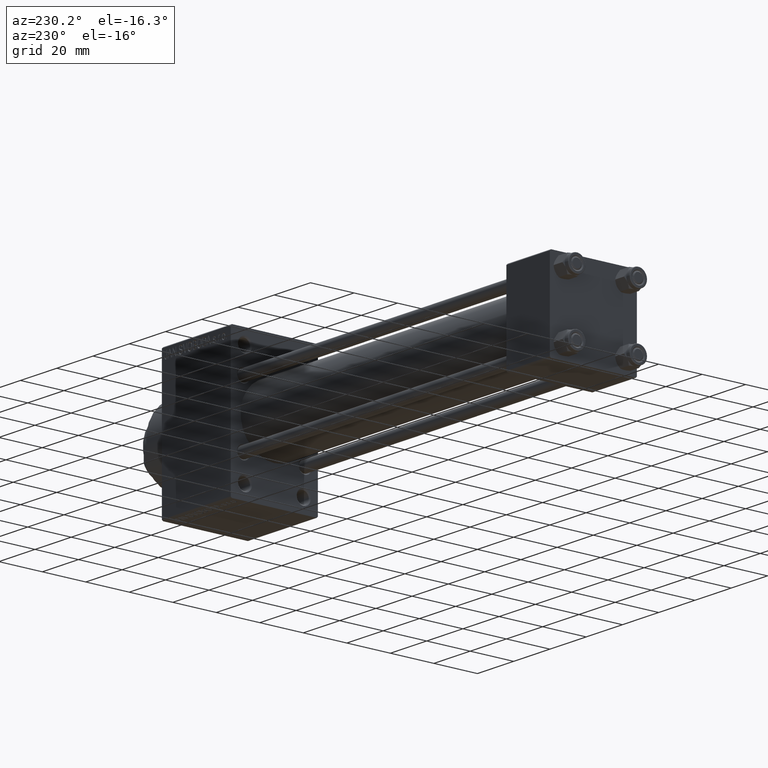
[diagram: clean part render]
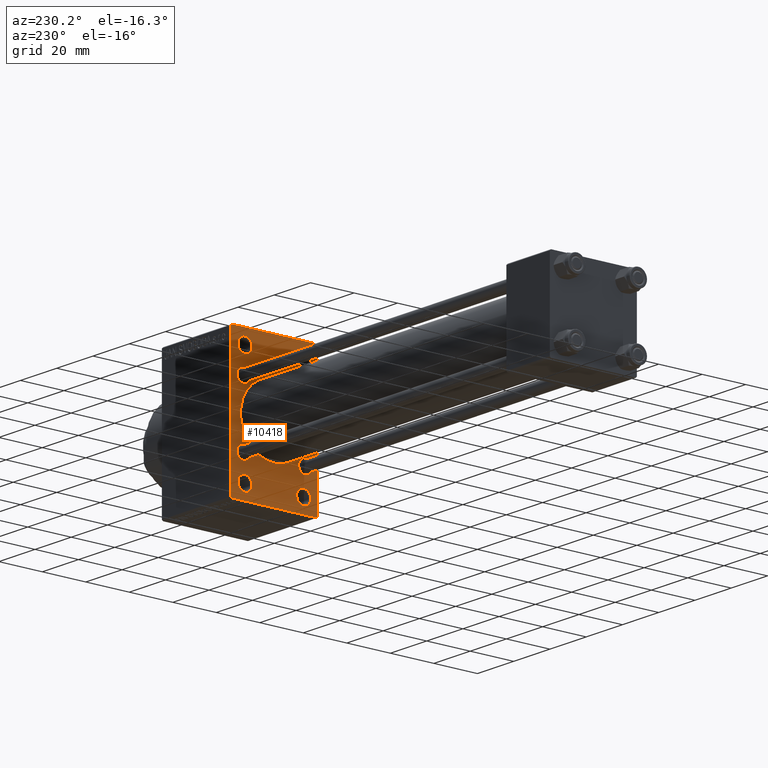
[diagram: same view with one face highlighted and labeled with its STEP entity id]
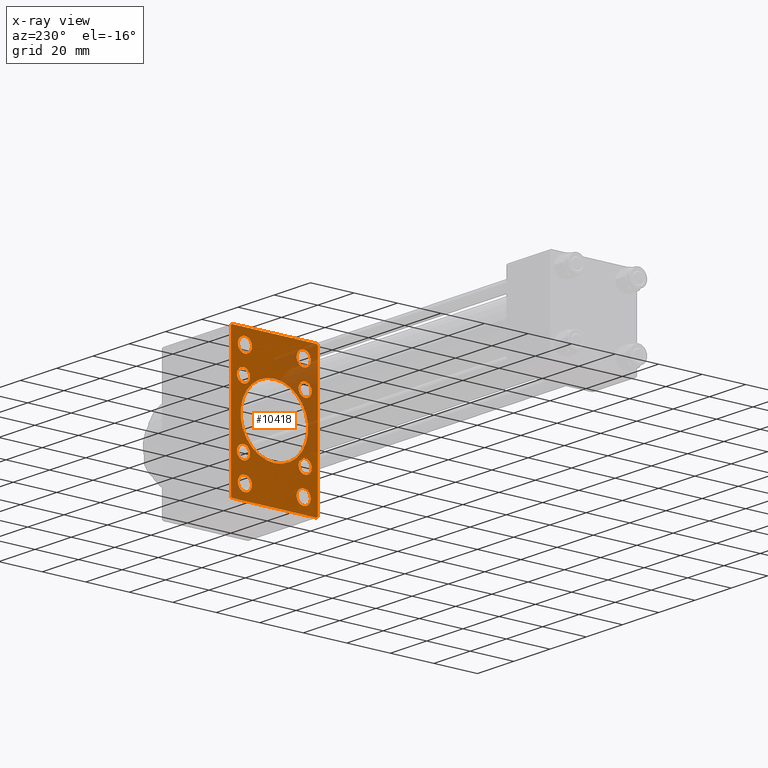
[diagram: x-ray of the same camera — body ghosted, the highlighted face saturated]
A machine part, auxiliary view. The second image highlights one B-rep face of the part: STEP entity #10418.
The next image is the same camera in x-ray: the body ghosted, the highlighted face saturated — about 21% of this face is hidden behind the body in this view.
In plain terms, the highlighted planar face has unit normal (-1, 0, 0).
Its self-contained STEP definition (entity closure, byte-faithful):
#26 = LINE ( 'NONE', #36191, #19155 ) ;
#763 = CIRCLE ( 'NONE', #34964, 3.000000000000004441 ) ;
#901 = DIRECTION ( 'NONE',  ( 1.000000000000000000, 0.000000000000000000, 0.000000000000000000 ) ) ;
#940 = ORIENTED_EDGE ( 'NONE', *, *, #29531, .T. ) ;
#1084 = CARTESIAN_POINT ( 'NONE',  ( 176.0000000000000000, 13.49999999999999822, 22.25000000000000355 ) ) ;
#1303 = VERTEX_POINT ( 'NONE', #4501 ) ;
#1853 = DIRECTION ( 'NONE',  ( 0.000000000000000000, 0.000000000000000000, 1.000000000000000000 ) ) ;
#2238 = CARTESIAN_POINT ( 'NONE',  ( 176.0000000000000000, -25.75000000000000000, 25.75000000000000000 ) ) ;
#2436 = DIRECTION ( 'NONE',  ( 1.000000000000000000, 0.000000000000000000, 0.000000000000000000 ) ) ;
#2564 = AXIS2_PLACEMENT_3D ( 'NONE', #13270, #19927, #1853 ) ;
#2987 = AXIS2_PLACEMENT_3D ( 'NONE', #42144, #5728, #45725 ) ;
#3020 = DIRECTION ( 'NONE',  ( -1.000000000000000000, 0.000000000000000000, -0.000000000000000000 ) ) ;
#3025 = CARTESIAN_POINT ( 'NONE',  ( 176.0000000000000000, -14.15000000000000036, -11.14999999999999680 ) ) ;
#3747 = DIRECTION ( 'NONE',  ( 0.000000000000000000, 0.000000000000000000, 1.000000000000000000 ) ) ;
#3805 = CARTESIAN_POINT ( 'NONE',  ( 176.0000000000000000, -19.49999999999997158, -32.00000000000000000 ) ) ;
#3872 = VERTEX_POINT ( 'NONE', #43807 ) ;
#4090 = ORIENTED_EDGE ( 'NONE', *, *, #29637, .T. ) ;
#4441 = CARTESIAN_POINT ( 'NONE',  ( 176.0000000000000000, 20.00000000000000000, -31.50000000000000000 ) ) ;
#4501 = CARTESIAN_POINT ( 'NONE',  ( 176.0000000000000000, -14.15000000000000036, -17.15000000000000568 ) ) ;
#4521 = CIRCLE ( 'NONE', #28823, 3.250000000000002665 ) ;
#5034 = CARTESIAN_POINT ( 'NONE',  ( 176.0000000000000000, 14.15000000000000036, -11.14999999999999680 ) ) ;
#5160 = DIRECTION ( 'NONE',  ( 0.000000000000000000, 0.000000000000000000, -1.000000000000000000 ) ) ;
#5552 = EDGE_CURVE ( 'NONE', #22484, #14336, #27238, .T. ) ;
#5576 = DIRECTION ( 'NONE',  ( 0.000000000000000000, 0.000000000000000000, -1.000000000000000000 ) ) ;
#5677 = FACE_BOUND ( 'NONE', #18451, .T. ) ;
#5728 = DIRECTION ( 'NONE',  ( 1.000000000000000000, 0.000000000000000000, 0.000000000000000000 ) ) ;
#5778 = AXIS2_PLACEMENT_3D ( 'NONE', #12160, #41201, #23556 ) ;
#5787 = CIRCLE ( 'NONE', #32372, 3.250000000000002665 ) ;
#5875 = VERTEX_POINT ( 'NONE', #45697 ) ;
#5909 = PLANE ( 'NONE',  #29433 ) ;
#6326 = CARTESIAN_POINT ( 'NONE',  ( 176.0000000000000000, 13.49999999999999822, 28.75000000000000711 ) ) ;
#6386 = ORIENTED_EDGE ( 'NONE', *, *, #36521, .T. ) ;
#6470 = CARTESIAN_POINT ( 'NONE',  ( 176.0000000000000000, 25.75000000000000000, -25.75000000000000000 ) ) ;
#6526 = AXIS2_PLACEMENT_3D ( 'NONE', #47090, #14699, #3747 ) ;
#6543 = DIRECTION ( 'NONE',  ( 1.000000000000000000, 0.000000000000000000, 0.000000000000000000 ) ) ;
#6623 = CIRCLE ( 'NONE', #35487, 3.250000000000002665 ) ;
#6944 = LINE ( 'NONE', #17877, #17546 ) ;
#7282 = EDGE_LOOP ( 'NONE', ( #940, #39433 ) ) ;
#7283 = EDGE_CURVE ( 'NONE', #3872, #14499, #25501, .T. ) ;
#7336 = EDGE_CURVE ( 'NONE', #28359, #10002, #11864, .T. ) ;
#7454 = VERTEX_POINT ( 'NONE', #8549 ) ;
#7523 = VERTEX_POINT ( 'NONE', #42325 ) ;
#7594 = CARTESIAN_POINT ( 'NONE',  ( 176.0000000000000000, -13.50000000000000533, -28.74999999999999645 ) ) ;
#7671 = EDGE_CURVE ( 'NONE', #44093, #46185, #43023, .T. ) ;
#7761 = EDGE_CURVE ( 'NONE', #7523, #14870, #5787, .T. ) ;
#8262 = CARTESIAN_POINT ( 'NONE',  ( 176.0000000000000000, -13.50000000000000178, 25.50000000000000355 ) ) ;
#8549 = CARTESIAN_POINT ( 'NONE',  ( 176.0000000000000000, 20.00000000000000000, 31.50000000000000000 ) ) ;
#8637 = EDGE_CURVE ( 'NONE', #22484, #29028, #23700, .T. ) ;
#8904 = EDGE_CURVE ( 'NONE', #5875, #25146, #19500, .T. ) ;
#8970 = CARTESIAN_POINT ( 'NONE',  ( 176.0000000000000000, 13.49999999999999822, -28.75000000000000000 ) ) ;
#9479 = CARTESIAN_POINT ( 'NONE',  ( 176.0000000000000000, 0.000000000000000000, 0.000000000000000000 ) ) ;
#9532 = ORIENTED_EDGE ( 'NONE', *, *, #7283, .T. ) ;
#9956 = EDGE_CURVE ( 'NONE', #15101, #14336, #22778, .T. ) ;
#10002 = VERTEX_POINT ( 'NONE', #8970 ) ;
#10168 = FACE_BOUND ( 'NONE', #7282, .T. ) ;
#10418 = ADVANCED_FACE ( 'NONE', ( #39201, #38509, #31829, #10168, #42096, #5677, #13287, #16850, #41863, #34934 ), #5909, .T. ) ;
#10728 = DIRECTION ( 'NONE',  ( 0.000000000000000000, 0.000000000000000000, -1.000000000000000000 ) ) ;
#10756 = EDGE_CURVE ( 'NONE', #30966, #28213, #25610, .T. ) ;
#11080 = AXIS2_PLACEMENT_3D ( 'NONE', #32837, #36151, #18073 ) ;
#11297 = DIRECTION ( 'NONE',  ( 0.000000000000000000, 0.000000000000000000, 1.000000000000000000 ) ) ;
#11367 = CARTESIAN_POINT ( 'NONE',  ( 176.0000000000000000, 20.00000000000000000, -32.00000000000000000 ) ) ;
#11375 = DIRECTION ( 'NONE',  ( 0.000000000000000000, -1.000000000000000000, -1.734723475976807094E-16 ) ) ;
#11417 = ORIENTED_EDGE ( 'NONE', *, *, #7336, .T. ) ;
#11428 = VERTEX_POINT ( 'NONE', #3025 ) ;
#11855 = CIRCLE ( 'NONE', #5778, 3.000000000000004441 ) ;
#11864 = CIRCLE ( 'NONE', #44521, 3.250000000000002665 ) ;
#12160 = CARTESIAN_POINT ( 'NONE',  ( 176.0000000000000000, 14.15000000000000036, 14.15000000000000036 ) ) ;
#12300 = DIRECTION ( 'NONE',  ( 1.000000000000000000, 0.000000000000000000, 0.000000000000000000 ) ) ;
#12688 = EDGE_CURVE ( 'NONE', #24943, #28308, #33030, .T. ) ;
#13270 = CARTESIAN_POINT ( 'NONE',  ( 176.0000000000000000, 13.49999999999999822, 25.50000000000000355 ) ) ;
#13287 = FACE_BOUND ( 'NONE', #27488, .T. ) ;
#13343 = CARTESIAN_POINT ( 'NONE',  ( 176.0000000000000000, 13.49999999999999822, -25.50000000000000000 ) ) ;
#14336 = VERTEX_POINT ( 'NONE', #44829 ) ;
#14442 = CARTESIAN_POINT ( 'NONE',  ( 176.0000000000000000, -13.50000000000000533, -25.49999999999999645 ) ) ;
#14499 = VERTEX_POINT ( 'NONE', #21921 ) ;
#14634 = CARTESIAN_POINT ( 'NONE',  ( 176.0000000000000000, 14.15000000000000036, -14.15000000000000036 ) ) ;
#14699 = DIRECTION ( 'NONE',  ( 1.000000000000000000, 0.000000000000000000, 0.000000000000000000 ) ) ;
#14870 = VERTEX_POINT ( 'NONE', #19236 ) ;
#14984 = DIRECTION ( 'NONE',  ( 1.000000000000000000, 0.000000000000000000, 0.000000000000000000 ) ) ;
#15101 = VERTEX_POINT ( 'NONE', #36332 ) ;
#15665 = VECTOR ( 'NONE', #34134, 1000.000000000000000 ) ;
#15767 = EDGE_CURVE ( 'NONE', #14499, #3872, #11855, .T. ) ;
#15846 = CARTESIAN_POINT ( 'NONE',  ( 176.0000000000000000, -13.50000000000000533, -22.24999999999999289 ) ) ;
#16413 = DIRECTION ( 'NONE',  ( 0.000000000000000000, 0.000000000000000000, 1.000000000000000000 ) ) ;
#16581 = CARTESIAN_POINT ( 'NONE',  ( 176.0000000000000000, 19.50000000000000000, -32.00000000000000000 ) ) ;
#16737 = AXIS2_PLACEMENT_3D ( 'NONE', #21715, #17905, #18621 ) ;
#16850 = FACE_BOUND ( 'NONE', #39389, .T. ) ;
#17048 = CARTESIAN_POINT ( 'NONE',  ( 176.0000000000000000, -14.15000000000000036, -14.15000000000000036 ) ) ;
#17546 = VECTOR ( 'NONE', #39787, 1000.000000000000000 ) ;
#17680 = AXIS2_PLACEMENT_3D ( 'NONE', #17048, #27536, #20381 ) ;
#17877 = CARTESIAN_POINT ( 'NONE',  ( 176.0000000000000000, -25.74999999999931077, -25.75000000000109779 ) ) ;
#17892 = VERTEX_POINT ( 'NONE', #7594 ) ;
#17905 = DIRECTION ( 'NONE',  ( 1.000000000000000000, 0.000000000000000000, 0.000000000000000000 ) ) ;
#18073 = DIRECTION ( 'NONE',  ( 0.000000000000000000, 0.000000000000000000, 1.000000000000000000 ) ) ;
#18267 = AXIS2_PLACEMENT_3D ( 'NONE', #36832, #901, #22546 ) ;
#18269 = VERTEX_POINT ( 'NONE', #15846 ) ;
#18451 = EDGE_LOOP ( 'NONE', ( #9532, #29707 ) ) ;
#18621 = DIRECTION ( 'NONE',  ( 0.000000000000000000, 0.000000000000000000, 1.000000000000000000 ) ) ;
#18631 = EDGE_CURVE ( 'NONE', #17892, #18269, #6623, .T. ) ;
#19155 = VECTOR ( 'NONE', #29529, 1000.000000000000000 ) ;
#19236 = CARTESIAN_POINT ( 'NONE',  ( 176.0000000000000000, -13.50000000000000178, 28.75000000000000355 ) ) ;
#19280 = DIRECTION ( 'NONE',  ( 1.000000000000000000, 0.000000000000000000, 0.000000000000000000 ) ) ;
#19500 = CIRCLE ( 'NONE', #24810, 15.50000000000000000 ) ;
#19865 = EDGE_LOOP ( 'NONE', ( #36417, #33818 ) ) ;
#19927 = DIRECTION ( 'NONE',  ( 1.000000000000000000, 0.000000000000000000, 0.000000000000000000 ) ) ;
#20328 = VERTEX_POINT ( 'NONE', #1084 ) ;
#20381 = DIRECTION ( 'NONE',  ( 0.000000000000000000, 0.000000000000000000, 1.000000000000000000 ) ) ;
#20384 = ORIENTED_EDGE ( 'NONE', *, *, #23537, .T. ) ;
#20453 = CIRCLE ( 'NONE', #2987, 3.000000000000004441 ) ;
#20704 = DIRECTION ( 'NONE',  ( 0.000000000000000000, 0.000000000000000000, 1.000000000000000000 ) ) ;
#20969 = DIRECTION ( 'NONE',  ( -0.000000000000000000, -0.7071067811865474617, -0.7071067811865474617 ) ) ;
#21715 = CARTESIAN_POINT ( 'NONE',  ( 176.0000000000000000, -13.50000000000000178, 25.50000000000000355 ) ) ;
#21921 = CARTESIAN_POINT ( 'NONE',  ( 176.0000000000000000, 14.15000000000000036, 11.14999999999999680 ) ) ;
#22082 = AXIS2_PLACEMENT_3D ( 'NONE', #31917, #43348, #10728 ) ;
#22132 = ORIENTED_EDGE ( 'NONE', *, *, #10756, .T. ) ;
#22484 = VERTEX_POINT ( 'NONE', #42200 ) ;
#22546 = DIRECTION ( 'NONE',  ( 0.000000000000000000, 0.000000000000000000, 1.000000000000000000 ) ) ;
#22764 = DIRECTION ( 'NONE',  ( 0.000000000000000000, 0.000000000000000000, 1.000000000000000000 ) ) ;
#22778 = LINE ( 'NONE', #26350, #44673 ) ;
#23079 = ORIENTED_EDGE ( 'NONE', *, *, #9956, .F. ) ;
#23236 = CARTESIAN_POINT ( 'NONE',  ( 176.0000000000000000, 20.00000000000000000, 32.00000000000000000 ) ) ;
#23458 = EDGE_LOOP ( 'NONE', ( #11417, #20384 ) ) ;
#23537 = EDGE_CURVE ( 'NONE', #10002, #28359, #4521, .T. ) ;
#23556 = DIRECTION ( 'NONE',  ( 0.000000000000000000, 0.000000000000000000, 1.000000000000000000 ) ) ;
#23562 = ORIENTED_EDGE ( 'NONE', *, *, #38080, .T. ) ;
#23643 = CARTESIAN_POINT ( 'NONE',  ( 176.0000000000000000, -2.602085213965210642E-15, 0.000000000000000000 ) ) ;
#23700 = LINE ( 'NONE', #37757, #41527 ) ;
#23854 = CIRCLE ( 'NONE', #2564, 3.250000000000002665 ) ;
#24266 = CARTESIAN_POINT ( 'NONE',  ( 176.0000000000000000, 14.15000000000000036, -14.15000000000000036 ) ) ;
#24294 = VERTEX_POINT ( 'NONE', #6326 ) ;
#24337 = CIRCLE ( 'NONE', #16737, 3.250000000000002665 ) ;
#24448 = DIRECTION ( 'NONE',  ( -0.000000000000000000, 0.000000000000000000, 1.000000000000000000 ) ) ;
#24810 = AXIS2_PLACEMENT_3D ( 'NONE', #23643, #26526, #5576 ) ;
#24943 = VERTEX_POINT ( 'NONE', #16581 ) ;
#25146 = VERTEX_POINT ( 'NONE', #26065 ) ;
#25501 = CIRCLE ( 'NONE', #11080, 3.000000000000004441 ) ;
#25566 = EDGE_LOOP ( 'NONE', ( #39034, #38115 ) ) ;
#25610 = CIRCLE ( 'NONE', #31695, 3.000000000000004441 ) ;
#25678 = ORIENTED_EDGE ( 'NONE', *, *, #34178, .T. ) ;
#25758 = EDGE_CURVE ( 'NONE', #25146, #5875, #46422, .T. ) ;
#26065 = CARTESIAN_POINT ( 'NONE',  ( 176.0000000000000000, -7.038826752868131828E-16, -15.50000000000000000 ) ) ;
#26350 = CARTESIAN_POINT ( 'NONE',  ( 176.0000000000000000, 20.00000000000000000, 32.00000000000000000 ) ) ;
#26526 = DIRECTION ( 'NONE',  ( 1.000000000000000000, 0.000000000000000000, 0.000000000000000000 ) ) ;
#27170 = VERTEX_POINT ( 'NONE', #4441 ) ;
#27238 = LINE ( 'NONE', #2238, #36870 ) ;
#27296 = CIRCLE ( 'NONE', #41746, 3.250000000000002665 ) ;
#27393 = ORIENTED_EDGE ( 'NONE', *, *, #31566, .T. ) ;
#27488 = EDGE_LOOP ( 'NONE', ( #42187, #22132 ) ) ;
#27536 = DIRECTION ( 'NONE',  ( 1.000000000000000000, 0.000000000000000000, 0.000000000000000000 ) ) ;
#28213 = VERTEX_POINT ( 'NONE', #5034 ) ;
#28308 = VERTEX_POINT ( 'NONE', #3805 ) ;
#28340 = CIRCLE ( 'NONE', #17680, 3.000000000000004441 ) ;
#28359 = VERTEX_POINT ( 'NONE', #30446 ) ;
#28546 = ORIENTED_EDGE ( 'NONE', *, *, #18631, .T. ) ;
#28823 = AXIS2_PLACEMENT_3D ( 'NONE', #13343, #31201, #42619 ) ;
#28990 = EDGE_CURVE ( 'NONE', #14870, #7523, #24337, .T. ) ;
#29028 = VERTEX_POINT ( 'NONE', #40526 ) ;
#29135 = AXIS2_PLACEMENT_3D ( 'NONE', #37376, #19280, #16413 ) ;
#29433 = AXIS2_PLACEMENT_3D ( 'NONE', #9479, #3020, #24448 ) ;
#29529 = DIRECTION ( 'NONE',  ( 0.000000000000000000, 0.7071067811865672237, -0.7071067811865279218 ) ) ;
#29531 = EDGE_CURVE ( 'NONE', #24294, #20328, #34982, .T. ) ;
#29637 = EDGE_CURVE ( 'NONE', #7454, #27170, #37066, .T. ) ;
#29707 = ORIENTED_EDGE ( 'NONE', *, *, #15767, .T. ) ;
#29973 = CARTESIAN_POINT ( 'NONE',  ( 176.0000000000000000, 13.49999999999999822, -25.50000000000000000 ) ) ;
#30440 = VECTOR ( 'NONE', #37763, 1000.000000000000000 ) ;
#30446 = CARTESIAN_POINT ( 'NONE',  ( 176.0000000000000000, 13.49999999999999822, -22.24999999999999645 ) ) ;
#30966 = VERTEX_POINT ( 'NONE', #46120 ) ;
#31028 = EDGE_LOOP ( 'NONE', ( #44572, #40992 ) ) ;
#31201 = DIRECTION ( 'NONE',  ( 1.000000000000000000, 0.000000000000000000, 0.000000000000000000 ) ) ;
#31373 = ORIENTED_EDGE ( 'NONE', *, *, #8637, .F. ) ;
#31566 = EDGE_CURVE ( 'NONE', #28308, #29028, #6944, .T. ) ;
#31612 = ORIENTED_EDGE ( 'NONE', *, *, #41894, .T. ) ;
#31695 = AXIS2_PLACEMENT_3D ( 'NONE', #14634, #6543, #11297 ) ;
#31829 = FACE_BOUND ( 'NONE', #23458, .T. ) ;
#31917 = CARTESIAN_POINT ( 'NONE',  ( 176.0000000000000000, -2.602085213965210642E-15, 0.000000000000000000 ) ) ;
#32372 = AXIS2_PLACEMENT_3D ( 'NONE', #8262, #12300, #22764 ) ;
#32740 = EDGE_LOOP ( 'NONE', ( #35716, #27393, #31373, #42928, #23079, #25678, #4090, #23562 ) ) ;
#32837 = CARTESIAN_POINT ( 'NONE',  ( 176.0000000000000000, 14.15000000000000036, 14.15000000000000036 ) ) ;
#33030 = LINE ( 'NONE', #11367, #15665 ) ;
#33818 = ORIENTED_EDGE ( 'NONE', *, *, #7761, .T. ) ;
#34134 = DIRECTION ( 'NONE',  ( 0.000000000000000000, -1.000000000000000000, 0.000000000000000000 ) ) ;
#34178 = EDGE_CURVE ( 'NONE', #15101, #7454, #26, .T. ) ;
#34934 = FACE_OUTER_BOUND ( 'NONE', #32740, .T. ) ;
#34964 = AXIS2_PLACEMENT_3D ( 'NONE', #24266, #38801, #20704 ) ;
#34982 = CIRCLE ( 'NONE', #18267, 3.250000000000002665 ) ;
#35042 = CARTESIAN_POINT ( 'NONE',  ( 176.0000000000000000, -13.50000000000000533, -25.49999999999999645 ) ) ;
#35262 = LINE ( 'NONE', #6470, #37530 ) ;
#35393 = CARTESIAN_POINT ( 'NONE',  ( 176.0000000000000000, -14.15000000000000036, 17.15000000000000568 ) ) ;
#35487 = AXIS2_PLACEMENT_3D ( 'NONE', #35042, #2436, #41485 ) ;
#35716 = ORIENTED_EDGE ( 'NONE', *, *, #12688, .T. ) ;
#36151 = DIRECTION ( 'NONE',  ( 1.000000000000000000, 0.000000000000000000, 0.000000000000000000 ) ) ;
#36191 = CARTESIAN_POINT ( 'NONE',  ( 176.0000000000000000, 25.74999999999944222, 25.75000000000087752 ) ) ;
#36332 = CARTESIAN_POINT ( 'NONE',  ( 176.0000000000000000, 19.49999999999997158, 32.00000000000000000 ) ) ;
#36417 = ORIENTED_EDGE ( 'NONE', *, *, #28990, .T. ) ;
#36521 = EDGE_CURVE ( 'NONE', #1303, #11428, #28340, .T. ) ;
#36832 = CARTESIAN_POINT ( 'NONE',  ( 176.0000000000000000, 13.49999999999999822, 25.50000000000000355 ) ) ;
#36870 = VECTOR ( 'NONE', #45107, 1000.000000000000114 ) ;
#37037 = EDGE_CURVE ( 'NONE', #11428, #1303, #46649, .T. ) ;
#37066 = LINE ( 'NONE', #23236, #30440 ) ;
#37376 = CARTESIAN_POINT ( 'NONE',  ( 176.0000000000000000, -14.15000000000000036, -14.15000000000000036 ) ) ;
#37530 = VECTOR ( 'NONE', #20969, 1000.000000000000114 ) ;
#37757 = CARTESIAN_POINT ( 'NONE',  ( 176.0000000000000000, -20.00000000000000000, 31.99999999999999289 ) ) ;
#37763 = DIRECTION ( 'NONE',  ( 0.000000000000000000, 0.000000000000000000, -1.000000000000000000 ) ) ;
#38080 = EDGE_CURVE ( 'NONE', #27170, #24943, #35262, .T. ) ;
#38115 = ORIENTED_EDGE ( 'NONE', *, *, #25758, .T. ) ;
#38509 = FACE_BOUND ( 'NONE', #40909, .T. ) ;
#38560 = EDGE_CURVE ( 'NONE', #20328, #24294, #23854, .T. ) ;
#38801 = DIRECTION ( 'NONE',  ( 1.000000000000000000, 0.000000000000000000, 0.000000000000000000 ) ) ;
#39034 = ORIENTED_EDGE ( 'NONE', *, *, #8904, .T. ) ;
#39201 = FACE_BOUND ( 'NONE', #19865, .T. ) ;
#39389 = EDGE_LOOP ( 'NONE', ( #41090, #6386 ) ) ;
#39433 = ORIENTED_EDGE ( 'NONE', *, *, #38560, .T. ) ;
#39787 = DIRECTION ( 'NONE',  ( 0.000000000000000000, -0.7071067811865721087, 0.7071067811865230368 ) ) ;
#39909 = DIRECTION ( 'NONE',  ( 1.000000000000000000, 0.000000000000000000, 0.000000000000000000 ) ) ;
#40526 = CARTESIAN_POINT ( 'NONE',  ( 176.0000000000000000, -20.00000000000000000, -31.50000000000000711 ) ) ;
#40909 = EDGE_LOOP ( 'NONE', ( #31612, #28546 ) ) ;
#40992 = ORIENTED_EDGE ( 'NONE', *, *, #7671, .T. ) ;
#41090 = ORIENTED_EDGE ( 'NONE', *, *, #37037, .T. ) ;
#41201 = DIRECTION ( 'NONE',  ( 1.000000000000000000, 0.000000000000000000, 0.000000000000000000 ) ) ;
#41485 = DIRECTION ( 'NONE',  ( 0.000000000000000000, 0.000000000000000000, 1.000000000000000000 ) ) ;
#41527 = VECTOR ( 'NONE', #5160, 1000.000000000000000 ) ;
#41746 = AXIS2_PLACEMENT_3D ( 'NONE', #14442, #39909, #43252 ) ;
#41863 = FACE_BOUND ( 'NONE', #25566, .T. ) ;
#41894 = EDGE_CURVE ( 'NONE', #18269, #17892, #27296, .T. ) ;
#41947 = CARTESIAN_POINT ( 'NONE',  ( 176.0000000000000000, -14.15000000000000036, 11.14999999999999503 ) ) ;
#42096 = FACE_BOUND ( 'NONE', #31028, .T. ) ;
#42144 = CARTESIAN_POINT ( 'NONE',  ( 176.0000000000000000, -14.15000000000000036, 14.15000000000000036 ) ) ;
#42187 = ORIENTED_EDGE ( 'NONE', *, *, #43808, .T. ) ;
#42200 = CARTESIAN_POINT ( 'NONE',  ( 176.0000000000000000, -20.00000000000000000, 31.49999999999999289 ) ) ;
#42325 = CARTESIAN_POINT ( 'NONE',  ( 176.0000000000000000, -13.50000000000000178, 22.25000000000000000 ) ) ;
#42619 = DIRECTION ( 'NONE',  ( 0.000000000000000000, 0.000000000000000000, 1.000000000000000000 ) ) ;
#42928 = ORIENTED_EDGE ( 'NONE', *, *, #5552, .T. ) ;
#42971 = EDGE_CURVE ( 'NONE', #46185, #44093, #20453, .T. ) ;
#43023 = CIRCLE ( 'NONE', #6526, 3.000000000000004441 ) ;
#43252 = DIRECTION ( 'NONE',  ( 0.000000000000000000, 0.000000000000000000, 1.000000000000000000 ) ) ;
#43348 = DIRECTION ( 'NONE',  ( 1.000000000000000000, 0.000000000000000000, 0.000000000000000000 ) ) ;
#43565 = DIRECTION ( 'NONE',  ( 0.000000000000000000, 0.000000000000000000, 1.000000000000000000 ) ) ;
#43807 = CARTESIAN_POINT ( 'NONE',  ( 176.0000000000000000, 14.15000000000000036, 17.15000000000000568 ) ) ;
#43808 = EDGE_CURVE ( 'NONE', #28213, #30966, #763, .T. ) ;
#44093 = VERTEX_POINT ( 'NONE', #41947 ) ;
#44521 = AXIS2_PLACEMENT_3D ( 'NONE', #29973, #14984, #43565 ) ;
#44572 = ORIENTED_EDGE ( 'NONE', *, *, #42971, .T. ) ;
#44673 = VECTOR ( 'NONE', #11375, 1000.000000000000000 ) ;
#44829 = CARTESIAN_POINT ( 'NONE',  ( 176.0000000000000000, -19.50000000000000000, 31.99999999999999289 ) ) ;
#45107 = DIRECTION ( 'NONE',  ( -0.000000000000000000, 0.7071067811865474617, 0.7071067811865474617 ) ) ;
#45697 = CARTESIAN_POINT ( 'NONE',  ( 176.0000000000000000, -2.602085213965210642E-15, 15.50000000000000000 ) ) ;
#45725 = DIRECTION ( 'NONE',  ( 0.000000000000000000, 0.000000000000000000, 1.000000000000000000 ) ) ;
#46120 = CARTESIAN_POINT ( 'NONE',  ( 176.0000000000000000, 14.15000000000000036, -17.15000000000000568 ) ) ;
#46185 = VERTEX_POINT ( 'NONE', #35393 ) ;
#46422 = CIRCLE ( 'NONE', #22082, 15.50000000000000000 ) ;
#46649 = CIRCLE ( 'NONE', #29135, 3.000000000000004441 ) ;
#47090 = CARTESIAN_POINT ( 'NONE',  ( 176.0000000000000000, -14.15000000000000036, 14.15000000000000036 ) ) ;